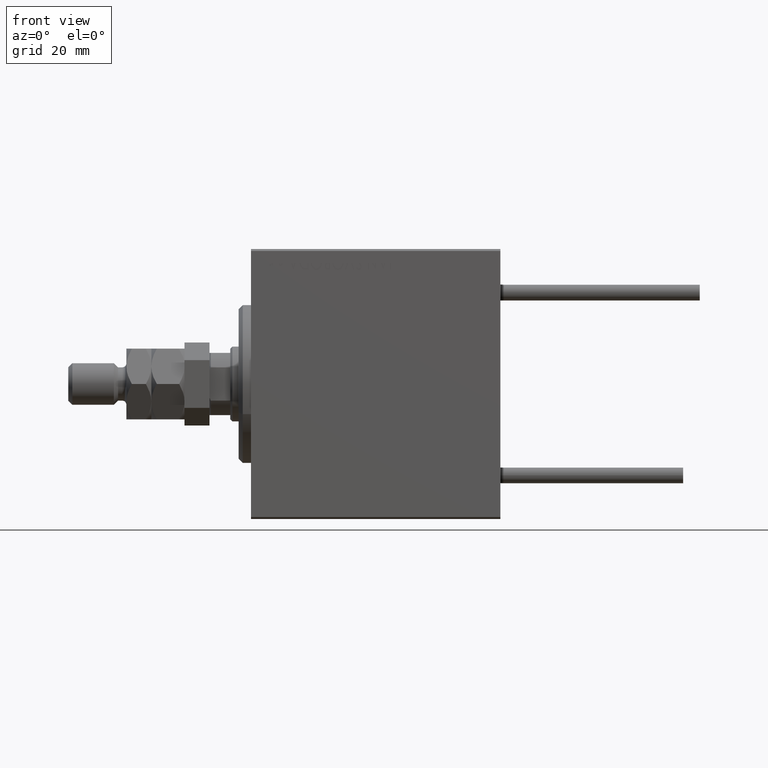
[diagram: clean part render]
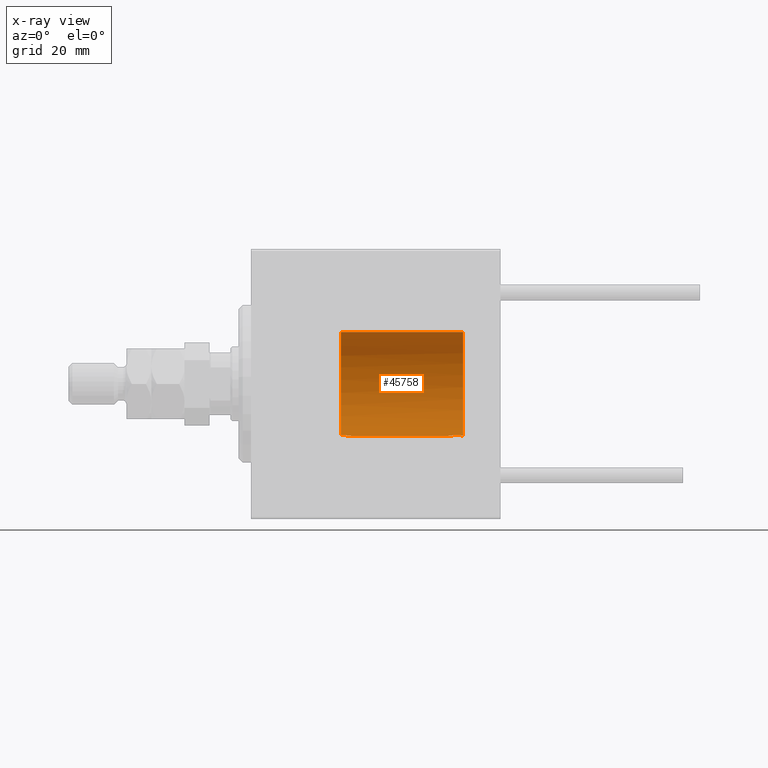
[diagram: x-ray — body ghosted, one internal face saturated and labeled with its STEP entity id]
A machine part, front view, then the same camera in x-ray: the body is ghosted and one INTERNAL B-rep face — a face not visible from any outside direction — is saturated and labeled: STEP entity #45758.
In plain terms, the highlighted cylindrical surface (partial cylindrical patch) has radius 12.5 mm, axis along (-1, -0, -0).
Its self-contained STEP definition (entity closure, byte-faithful):
#1729 = ORIENTED_EDGE ( 'NONE', *, *, #7123, .F. ) ;
#1875 = CARTESIAN_POINT ( 'NONE',  ( 49.18098115210914756, 1.984584717723732128, -12.34145732299796627 ) ) ;
#2653 = CARTESIAN_POINT ( 'NONE',  ( 48.97932644720604856, 1.941437110976220515, -12.34852179005069317 ) ) ;
#3172 = DIRECTION ( 'NONE',  ( 0.000000000000000000, 0.000000000000000000, 1.000000000000000000 ) ) ;
#5556 = CARTESIAN_POINT ( 'NONE',  ( 48.10898979271954801, 1.451004077592688901, -12.41612488339556819 ) ) ;
#7123 = EDGE_CURVE ( 'NONE', #31461, #48004, #24964, .T. ) ;
#7696 = VERTEX_POINT ( 'NONE', #43718 ) ;
#8203 = VERTEX_POINT ( 'NONE', #24455 ) ;
#9105 = CYLINDRICAL_SURFACE ( 'NONE', #40219, 12.50000000000000000 ) ;
#10249 = CARTESIAN_POINT ( 'NONE',  ( 23.74279251675834601, 0.9923644054541594928, -12.46127365530041509 ) ) ;
#10277 = CARTESIAN_POINT ( 'NONE',  ( 49.78743626900490682, 1.989409466438088803, -12.34077213369587689 ) ) ;
#10515 = CARTESIAN_POINT ( 'NONE',  ( 23.99999999999999645, 0.1473696046775624380, -12.50000000000000178 ) ) ;
#10542 = CARTESIAN_POINT ( 'NONE',  ( 47.53045032196519770, 0.4023876781965645133, -12.49502177385110180 ) ) ;
#12429 = EDGE_CURVE ( 'NONE', #16843, #48004, #50121, .T. ) ;
#13149 = CARTESIAN_POINT ( 'NONE',  ( 21.74564180324009044, 1.989320802822965417, -12.34072561988454098 ) ) ;
#13483 = ORIENTED_EDGE ( 'NONE', *, *, #48959, .T. ) ;
#13664 = CARTESIAN_POINT ( 'NONE',  ( 22.76544708118979443, 1.871033009917032475, -12.35938281327568333 ) ) ;
#14184 = CARTESIAN_POINT ( 'NONE',  ( 23.87038660041933724, 0.7237173720818528277, -12.47975806619838046 ) ) ;
#16477 = DIRECTION ( 'NONE',  ( -1.000000000000000000, -0.000000000000000000, -0.000000000000000000 ) ) ;
#16843 = VERTEX_POINT ( 'NONE', #25962 ) ;
#17242 = CARTESIAN_POINT ( 'NONE',  ( 51.00000000000000000, 0.000000000000000000, 0.000000000000000000 ) ) ;
#17618 = CARTESIAN_POINT ( 'NONE',  ( 50.17741464809243723, 1.892479597893395482, -12.35600776353412122 ) ) ;
#18408 = CARTESIAN_POINT ( 'NONE',  ( 48.60395322527892148, 1.799271847711377825, -12.37003594470386680 ) ) ;
#18666 = CARTESIAN_POINT ( 'NONE',  ( 50.71033926821618820, 1.604813711208562754, -12.39700217114532954 ) ) ;
#18762 = VERTEX_POINT ( 'NONE', #40413 ) ;
#19209 = AXIS2_PLACEMENT_3D ( 'NONE', #50434, #35627, #20120 ) ;
#20120 = DIRECTION ( 'NONE',  ( 0.000000000000000000, 0.000000000000000000, 1.000000000000000000 ) ) ;
#21159 = FACE_OUTER_BOUND ( 'NONE', #30656, .T. ) ;
#22072 = CARTESIAN_POINT ( 'NONE',  ( 47.49999999999999289, 1.530808498934191127E-15, -12.50000000000000000 ) ) ;
#22588 = CARTESIAN_POINT ( 'NONE',  ( 47.96913547360404806, 1.302704858567468760, -12.43304705398240095 ) ) ;
#22842 = CARTESIAN_POINT ( 'NONE',  ( 51.00000000000000000, 0.000000000000000000, 0.000000000000000000 ) ) ;
#24455 = CARTESIAN_POINT ( 'NONE',  ( 51.00000000000013500, 1.322875655532433026, -12.42980289465605814 ) ) ;
#24964 = LINE ( 'NONE', #41240, #37367 ) ;
#25207 = CARTESIAN_POINT ( 'NONE',  ( 21.89227028947654929, 2.002545304233220858, -12.33855020621523302 ) ) ;
#25898 = DIRECTION ( 'NONE',  ( -1.000000000000000000, -0.000000000000000000, -0.000000000000000000 ) ) ;
#25962 = CARTESIAN_POINT ( 'NONE',  ( 21.60000000000000142, 1.959591794226542394, -12.34544450394557558 ) ) ;
#26025 = CARTESIAN_POINT ( 'NONE',  ( 49.58201919524508128, 2.008388005028794332, -12.33760604730347410 ) ) ;
#26545 = CARTESIAN_POINT ( 'NONE',  ( 50.36702809096098576, 1.813452641056178205, -12.36820437241038562 ) ) ;
#28033 = CARTESIAN_POINT ( 'NONE',  ( 51.00000000000000000, 0.000000000000000000, 12.50000000000000000 ) ) ;
#29233 = ORIENTED_EDGE ( 'NONE', *, *, #45705, .T. ) ;
#30513 = ORIENTED_EDGE ( 'NONE', *, *, #38508, .F. ) ;
#30656 = EDGE_LOOP ( 'NONE', ( #1729, #13483, #30513, #29233, #32050, #34448 ) ) ;
#31461 = VERTEX_POINT ( 'NONE', #45702 ) ;
#32050 = ORIENTED_EDGE ( 'NONE', *, *, #44177, .T. ) ;
#33594 = CARTESIAN_POINT ( 'NONE',  ( 23.98328942354288884, 0.2971244593145340174, -12.49729599730583729 ) ) ;
#34287 = CIRCLE ( 'NONE', #19209, 12.50000000000000000 ) ;
#34448 = ORIENTED_EDGE ( 'NONE', *, *, #12429, .T. ) ;
#35627 = DIRECTION ( 'NONE',  ( -1.000000000000000000, 0.000000000000000000, 0.000000000000000000 ) ) ;
#36247 = CARTESIAN_POINT ( 'NONE',  ( 22.33672788703165679, 1.976937725288908210, -12.34273042088552330 ) ) ;
#36838 = VECTOR ( 'NONE', #16477, 1000.000000000000000 ) ;
#37188 = DIRECTION ( 'NONE',  ( 0.000000000000000000, 0.000000000000000000, 1.000000000000000000 ) ) ;
#37367 = VECTOR ( 'NONE', #48119, 1000.000000000000000 ) ;
#37539 = CARTESIAN_POINT ( 'NONE',  ( 23.91831461645850254, 0.5846271582314070958, -12.48714944550828498 ) ) ;
#37802 = CARTESIAN_POINT ( 'NONE',  ( 23.48374771350913903, 1.349095562022244454, -12.42752732354038514 ) ) ;
#38063 = CARTESIAN_POINT ( 'NONE',  ( 23.37873654545996516, 1.456279192147104107, -12.41523454539819404 ) ) ;
#38092 = CARTESIAN_POINT ( 'NONE',  ( 47.74008254401930174, 0.9712243277673447972, -12.46332308416293877 ) ) ;
#38316 = CARTESIAN_POINT ( 'NONE',  ( 23.66489188515411257, 1.117900319151801991, -12.45045352946033290 ) ) ;
#38508 = EDGE_CURVE ( 'NONE', #7696, #8203, #44298, .T. ) ;
#38596 = DIRECTION ( 'NONE',  ( -1.000000000000000000, 0.000000000000000000, 0.000000000000000000 ) ) ;
#38606 = CARTESIAN_POINT ( 'NONE',  ( 47.65114762002322379, 0.7891683311345192298, -12.47656596655153116 ) ) ;
#40219 = AXIS2_PLACEMENT_3D ( 'NONE', #17242, #25898, #37188 ) ;
#40413 = CARTESIAN_POINT ( 'NONE',  ( 21.60000000000000142, 0.000000000000000000, 12.50000000000000000 ) ) ;
#41227 = CARTESIAN_POINT ( 'NONE',  ( 22.18746328835901238, 1.996659936382160661, -12.33950396025897156 ) ) ;
#41240 = CARTESIAN_POINT ( 'NONE',  ( 51.00000000000000000, 1.530808498934191521E-15, -12.50000000000000000 ) ) ;
#42311 = CARTESIAN_POINT ( 'NONE',  ( 50.86689974519472912, 1.473797158526928941, -12.41374066230209294 ) ) ;
#43718 = CARTESIAN_POINT ( 'NONE',  ( 51.00000000000000000, 0.000000000000000000, 12.50000000000000000 ) ) ;
#44063 = LINE ( 'NONE', #28033, #36838 ) ;
#44177 = EDGE_CURVE ( 'NONE', #18762, #16843, #34287, .T. ) ;
#44298 = CIRCLE ( 'NONE', #50145, 12.50000000000000000 ) ;
#45702 = CARTESIAN_POINT ( 'NONE',  ( 47.49999999999999289, 1.530808498934191127E-15, -12.50000000000000000 ) ) ;
#45705 = EDGE_CURVE ( 'NONE', #7696, #18762, #44063, .T. ) ;
#45758 = ADVANCED_FACE ( 'NONE', ( #21159 ), #9105, .F. ) ;
#46499 = CARTESIAN_POINT ( 'NONE',  ( 23.03667328571824058, 1.735500702318550026, -12.38035657496057063 ) ) ;
#46527 = CARTESIAN_POINT ( 'NONE',  ( 47.49999999999999289, 0.2038324961472966212, -12.50000000000000000 ) ) ;
#47958 = B_SPLINE_CURVE_WITH_KNOTS ( 'NONE', 3,
 ( #22072, #46527, #10542, #38606, #38092, #22588, #5556, #49670, #18408, #2653, #1875, #26025, #10277, #17618, #26545, #18666, #42311, #50718 ),
 .UNSPECIFIED., .F., .F.,
 ( 4, 2, 2, 2, 2, 2, 2, 2, 4 ),
 ( 7.954070731922964181E-18, 0.0006027441664444459007, 0.001205488332888883778, 0.001808232499333321981, 0.002410976665777759750, 0.003013720832222197520, 0.003616464998666635722, 0.004219209165111073925, 0.004821953331555511695 ),
 .UNSPECIFIED. ) ;
#48004 = VERTEX_POINT ( 'NONE', #48123 ) ;
#48119 = DIRECTION ( 'NONE',  ( -1.000000000000000000, -0.000000000000000000, -0.000000000000000000 ) ) ;
#48123 = CARTESIAN_POINT ( 'NONE',  ( 24.00000000000000000, 1.530808426277417854E-15, -12.50000000000000000 ) ) ;
#48959 = EDGE_CURVE ( 'NONE', #31461, #8203, #47958, .T. ) ;
#49128 = CARTESIAN_POINT ( 'NONE',  ( 21.60000000000000142, 1.959591794226542394, -12.34544450394557558 ) ) ;
#49670 = CARTESIAN_POINT ( 'NONE',  ( 48.42521375887140067, 1.698574922053669667, -12.38468462204168041 ) ) ;
#50121 = B_SPLINE_CURVE_WITH_KNOTS ( 'NONE', 3,
 ( #49128, #13149, #25207, #41227, #36247, #13664, #46499, #38063, #37802, #38316, #10249, #14184, #37539, #33594, #10515, #50161 ),
 .UNSPECIFIED., .F., .F.,
 ( 4, 2, 2, 2, 2, 2, 2, 4 ),
 ( 0.002730459340597002175, 0.003172024469343901268, 0.003613589598090799927, 0.004496719855584597678, 0.004938284984331492433, 0.005379850113078387189, 0.005821415241825281944, 0.006262980370572176700 ),
 .UNSPECIFIED. ) ;
#50145 = AXIS2_PLACEMENT_3D ( 'NONE', #22842, #38596, #3172 ) ;
#50161 = CARTESIAN_POINT ( 'NONE',  ( 24.00000000000000000, 1.530808426277417854E-15, -12.50000000000000000 ) ) ;
#50434 = CARTESIAN_POINT ( 'NONE',  ( 21.60000000000000142, 0.000000000000000000, 0.000000000000000000 ) ) ;
#50718 = CARTESIAN_POINT ( 'NONE',  ( 51.00000000000013500, 1.322875655532433026, -12.42980289465605814 ) ) ;